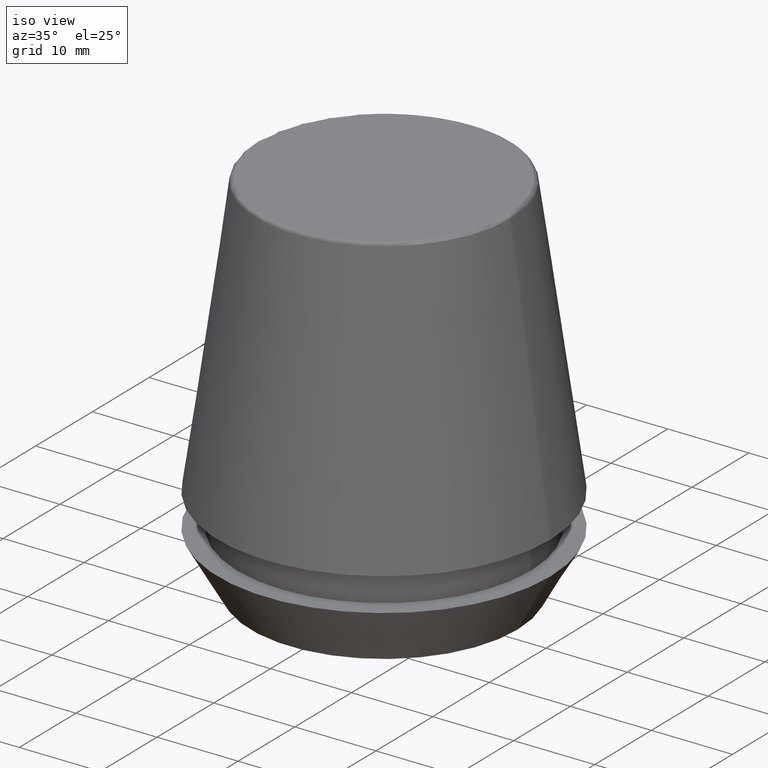
[diagram: clean part render]
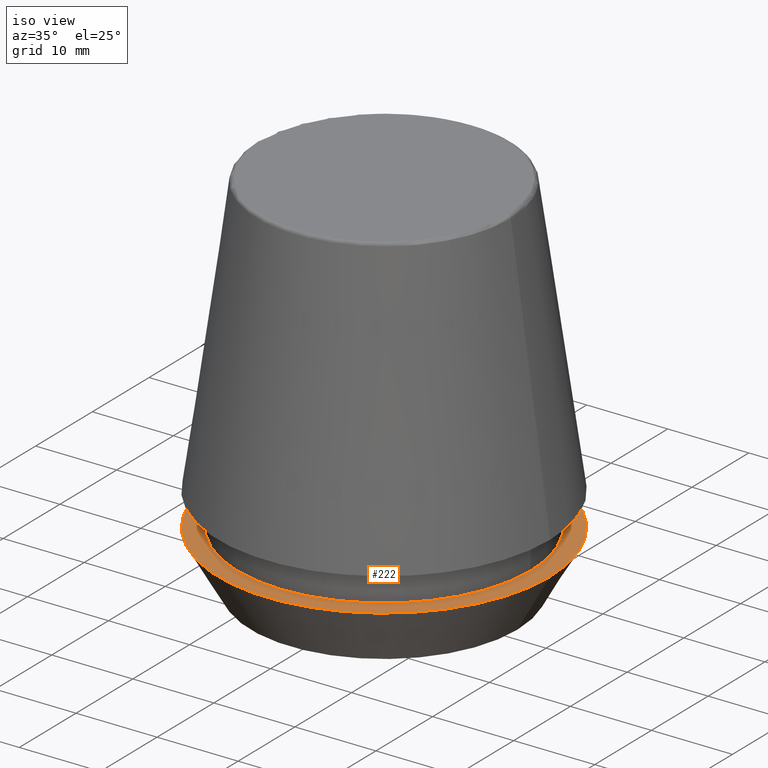
[diagram: same view with one face highlighted and labeled with its STEP entity id]
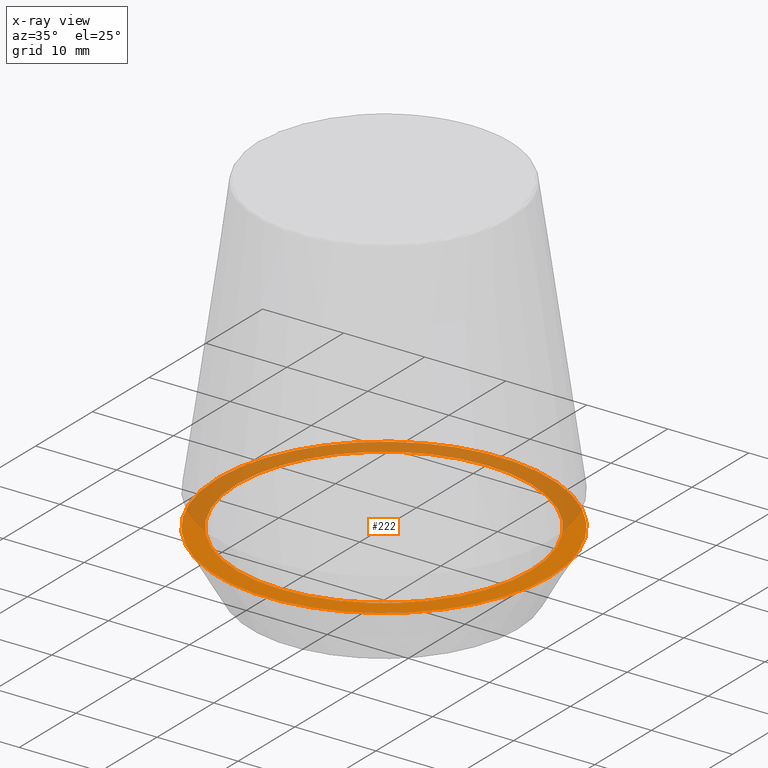
[diagram: x-ray of the same camera — body ghosted, the highlighted face saturated]
A machine part, iso view. The second image highlights one B-rep face of the part: STEP entity #222.
The next image is the same camera in x-ray: the body ghosted, the highlighted face saturated — about 47% of this face is hidden behind the body in this view.
In plain terms, the highlighted planar face has unit normal (0, 0, -1).
Its self-contained STEP definition (entity closure, byte-faithful):
#11 = DIRECTION ( 'NONE',  ( 1.000000000000000000, 0.0000000000000000000, 0.0000000000000000000 ) ) ;
#14 = EDGE_CURVE ( 'NONE', #270, #253, #21, .T. ) ;
#20 = CARTESIAN_POINT ( 'NONE',  ( 20.50000000000000000, 0.0000000000000000000, 7.000000000000006200 ) ) ;
#21 = CIRCLE ( 'NONE', #126, 18.10000000000000100 ) ;
#24 = EDGE_CURVE ( 'NONE', #293, #193, #84, .T. ) ;
#42 = DIRECTION ( 'NONE',  ( -0.0000000000000000000, -0.0000000000000000000, 1.000000000000000000 ) ) ;
#48 = AXIS2_PLACEMENT_3D ( 'NONE', #235, #42, #233 ) ;
#62 = DIRECTION ( 'NONE',  ( -1.000000000000000000, 0.0000000000000000000, -0.0000000000000000000 ) ) ;
#71 = PLANE ( 'NONE',  #254 ) ;
#84 = CIRCLE ( 'NONE', #48, 20.50000000000000000 ) ;
#93 = DIRECTION ( 'NONE',  ( -0.0000000000000000000, -0.0000000000000000000, 1.000000000000000000 ) ) ;
#121 = DIRECTION ( 'NONE',  ( 1.000000000000000000, 0.0000000000000000000, 0.0000000000000000000 ) ) ;
#126 = AXIS2_PLACEMENT_3D ( 'NONE', #371, #163, #11 ) ;
#139 = CARTESIAN_POINT ( 'NONE',  ( 0.0000000000000000000, 0.0000000000000000000, 7.000000000000006200 ) ) ;
#144 = EDGE_LOOP ( 'NONE', ( #297, #171 ) ) ;
#147 = EDGE_CURVE ( 'NONE', #193, #293, #380, .T. ) ;
#148 = AXIS2_PLACEMENT_3D ( 'NONE', #284, #93, #121 ) ;
#158 = FACE_BOUND ( 'NONE', #144, .T. ) ;
#163 = DIRECTION ( 'NONE',  ( -0.0000000000000000000, -0.0000000000000000000, 1.000000000000000000 ) ) ;
#165 = DIRECTION ( 'NONE',  ( 1.000000000000000000, 0.0000000000000000000, 0.0000000000000000000 ) ) ;
#171 = ORIENTED_EDGE ( 'NONE', *, *, #14, .F. ) ;
#180 = CARTESIAN_POINT ( 'NONE',  ( 18.10000000000000100, 0.0000000000000000000, 6.999999999999999100 ) ) ;
#193 = VERTEX_POINT ( 'NONE', #231 ) ;
#222 = ADVANCED_FACE ( 'NONE', ( #158, #359 ), #71, .F. ) ;
#231 = CARTESIAN_POINT ( 'NONE',  ( -20.50000000000000000, 2.510525938252074100E-015, 7.000000000000006200 ) ) ;
#233 = DIRECTION ( 'NONE',  ( 1.000000000000000000, 0.0000000000000000000, 0.0000000000000000000 ) ) ;
#235 = CARTESIAN_POINT ( 'NONE',  ( 0.0000000000000000000, 0.0000000000000000000, 7.000000000000006200 ) ) ;
#247 = AXIS2_PLACEMENT_3D ( 'NONE', #139, #373, #165 ) ;
#248 = ORIENTED_EDGE ( 'NONE', *, *, #24, .T. ) ;
#253 = VERTEX_POINT ( 'NONE', #180 ) ;
#254 = AXIS2_PLACEMENT_3D ( 'NONE', #285, #349, #62 ) ;
#270 = VERTEX_POINT ( 'NONE', #275 ) ;
#275 = CARTESIAN_POINT ( 'NONE',  ( -18.10000000000000100, 2.216610706456709600E-015, 6.999999999999999100 ) ) ;
#284 = CARTESIAN_POINT ( 'NONE',  ( 0.0000000000000000000, 0.0000000000000000000, 6.999999999999999100 ) ) ;
#285 = CARTESIAN_POINT ( 'NONE',  ( 0.0000000000000000000, 20.50000000000000000, 7.000000000000002700 ) ) ;
#290 = EDGE_CURVE ( 'NONE', #253, #270, #337, .T. ) ;
#291 = ORIENTED_EDGE ( 'NONE', *, *, #147, .T. ) ;
#293 = VERTEX_POINT ( 'NONE', #20 ) ;
#297 = ORIENTED_EDGE ( 'NONE', *, *, #290, .F. ) ;
#322 = EDGE_LOOP ( 'NONE', ( #248, #291 ) ) ;
#337 = CIRCLE ( 'NONE', #148, 18.10000000000000100 ) ;
#349 = DIRECTION ( 'NONE',  ( 0.0000000000000000000, 0.0000000000000000000, -1.000000000000000000 ) ) ;
#359 = FACE_OUTER_BOUND ( 'NONE', #322, .T. ) ;
#371 = CARTESIAN_POINT ( 'NONE',  ( 0.0000000000000000000, 0.0000000000000000000, 6.999999999999999100 ) ) ;
#373 = DIRECTION ( 'NONE',  ( -0.0000000000000000000, -0.0000000000000000000, 1.000000000000000000 ) ) ;
#380 = CIRCLE ( 'NONE', #247, 20.50000000000000000 ) ;